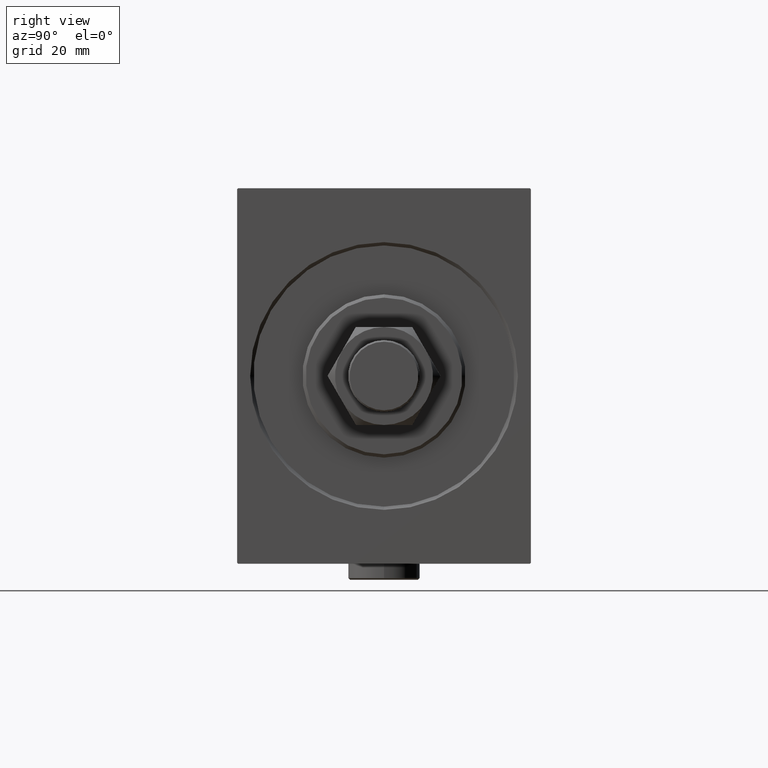
[diagram: clean part render]
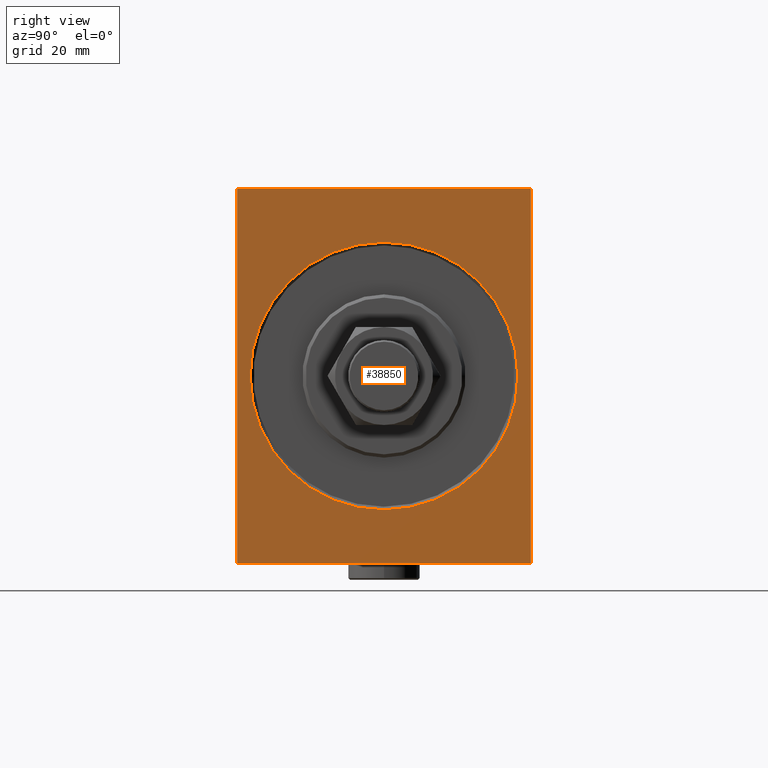
[diagram: same view with one face highlighted and labeled with its STEP entity id]
A machine part, right view. The second image highlights one B-rep face of the part: STEP entity #38850.
In plain terms, the highlighted planar face has unit normal (-1, 0, 0).
Its self-contained STEP definition (entity closure, byte-faithful):
#371 = FACE_OUTER_BOUND ( 'NONE', #19134, .T. ) ;
#1644 = ORIENTED_EDGE ( 'NONE', *, *, #27723, .T. ) ;
#2292 = DIRECTION ( 'NONE',  ( 0.000000000000000000, 0.000000000000000000, -1.000000000000000000 ) ) ;
#3249 = CARTESIAN_POINT ( 'NONE',  ( 0.000000000000000000, -44.70000000000003126, -57.50000000000002132 ) ) ;
#3302 = LINE ( 'NONE', #35689, #34653 ) ;
#3335 = VERTEX_POINT ( 'NONE', #37139 ) ;
#4716 = CARTESIAN_POINT ( 'NONE',  ( 0.000000000000000000, -44.70000000000003126, -57.50000000000002132 ) ) ;
#5890 = CARTESIAN_POINT ( 'NONE',  ( 0.000000000000000000, 0.000000000000000000, 0.000000000000000000 ) ) ;
#5993 = CARTESIAN_POINT ( 'NONE',  ( 0.000000000000000000, -45.00000000000000000, 57.49999999999999289 ) ) ;
#6158 = DIRECTION ( 'NONE',  ( 0.000000000000000000, 0.000000000000000000, 1.000000000000000000 ) ) ;
#7309 = VECTOR ( 'NONE', #35218, 1000.000000000000000 ) ;
#7318 = DIRECTION ( 'NONE',  ( 1.000000000000000000, 0.000000000000000000, -0.000000000000000000 ) ) ;
#9017 = LINE ( 'NONE', #5993, #10327 ) ;
#9737 = ORIENTED_EDGE ( 'NONE', *, *, #17533, .T. ) ;
#10072 = CARTESIAN_POINT ( 'NONE',  ( 0.000000000000000000, 45.00000000000001421, 57.19999999999998863 ) ) ;
#10327 = VECTOR ( 'NONE', #2292, 1000.000000000000000 ) ;
#10328 = CARTESIAN_POINT ( 'NONE',  ( 0.000000000000000000, 0.000000000000000000, 41.00000000000000711 ) ) ;
#10792 = DIRECTION ( 'NONE',  ( -0.000000000000000000, 0.000000000000000000, -1.000000000000000000 ) ) ;
#10930 = VERTEX_POINT ( 'NONE', #38148 ) ;
#13958 = AXIS2_PLACEMENT_3D ( 'NONE', #5890, #20020, #23275 ) ;
#14091 = CARTESIAN_POINT ( 'NONE',  ( 0.000000000000000000, -44.69999999999997442, 57.49999999999999289 ) ) ;
#14775 = VECTOR ( 'NONE', #41019, 1000.000000000000114 ) ;
#14947 = FACE_BOUND ( 'NONE', #21237, .T. ) ;
#15210 = DIRECTION ( 'NONE',  ( 0.000000000000000000, 0.000000000000000000, -1.000000000000000000 ) ) ;
#15519 = CARTESIAN_POINT ( 'NONE',  ( 0.000000000000000000, -45.00000000000000000, -57.50000000000002132 ) ) ;
#15663 = CARTESIAN_POINT ( 'NONE',  ( 0.000000000000000000, 0.000000000000000000, 0.000000000000000000 ) ) ;
#15680 = AXIS2_PLACEMENT_3D ( 'NONE', #32071, #7318, #10792 ) ;
#15841 = VERTEX_POINT ( 'NONE', #14091 ) ;
#16888 = VECTOR ( 'NONE', #33455, 1000.000000000000114 ) ;
#17078 = VERTEX_POINT ( 'NONE', #20097 ) ;
#17214 = DIRECTION ( 'NONE',  ( -0.000000000000000000, -0.7071067811865474617, -0.7071067811865474617 ) ) ;
#17533 = EDGE_CURVE ( 'NONE', #3335, #15841, #20896, .T. ) ;
#17975 = PLANE ( 'NONE',  #15680 ) ;
#18411 = EDGE_CURVE ( 'NONE', #10930, #19760, #37572, .T. ) ;
#18469 = DIRECTION ( 'NONE',  ( 1.000000000000000000, 0.000000000000000000, -0.000000000000000000 ) ) ;
#18678 = VECTOR ( 'NONE', #6158, 1000.000000000000000 ) ;
#18788 = EDGE_CURVE ( 'NONE', #24774, #15841, #21378, .T. ) ;
#19134 = EDGE_LOOP ( 'NONE', ( #40635, #30844, #36387, #1644, #43183, #42289, #40289, #9737 ) ) ;
#19760 = VERTEX_POINT ( 'NONE', #10328 ) ;
#20020 = DIRECTION ( 'NONE',  ( 1.000000000000000000, 0.000000000000000000, -0.000000000000000000 ) ) ;
#20097 = CARTESIAN_POINT ( 'NONE',  ( 0.000000000000000000, 45.00000000000001421, -57.20000000000004547 ) ) ;
#20432 = VERTEX_POINT ( 'NONE', #29409 ) ;
#20457 = CARTESIAN_POINT ( 'NONE',  ( 0.000000000000000000, 45.00000000000001421, 57.50000000000001421 ) ) ;
#20558 = EDGE_CURVE ( 'NONE', #24774, #42917, #40500, .T. ) ;
#20896 = LINE ( 'NONE', #29987, #16888 ) ;
#21197 = EDGE_CURVE ( 'NONE', #35437, #20432, #36394, .T. ) ;
#21237 = EDGE_LOOP ( 'NONE', ( #36245, #34904 ) ) ;
#21378 = LINE ( 'NONE', #20457, #7309 ) ;
#22476 = LINE ( 'NONE', #15519, #45093 ) ;
#23275 = DIRECTION ( 'NONE',  ( 0.000000000000000000, 0.000000000000000000, -1.000000000000000000 ) ) ;
#23769 = CARTESIAN_POINT ( 'NONE',  ( 0.000000000000000000, 45.00000000000001421, -57.50000000000000711 ) ) ;
#24774 = VERTEX_POINT ( 'NONE', #25323 ) ;
#25323 = CARTESIAN_POINT ( 'NONE',  ( 0.000000000000000000, 44.70000000000001705, 57.50000000000001421 ) ) ;
#26400 = CARTESIAN_POINT ( 'NONE',  ( 0.000000000000000000, 44.70000000000001705, 57.50000000000001421 ) ) ;
#26701 = EDGE_CURVE ( 'NONE', #19760, #10930, #32446, .T. ) ;
#27723 = EDGE_CURVE ( 'NONE', #17078, #28928, #3302, .T. ) ;
#28928 = VERTEX_POINT ( 'NONE', #30748 ) ;
#28934 = EDGE_CURVE ( 'NONE', #3335, #20432, #9017, .T. ) ;
#29409 = CARTESIAN_POINT ( 'NONE',  ( 0.000000000000000000, -45.00000000000000000, -57.20000000000003126 ) ) ;
#29847 = DIRECTION ( 'NONE',  ( 0.000000000000000000, 1.000000000000000000, 1.541976423090495140E-16 ) ) ;
#29987 = CARTESIAN_POINT ( 'NONE',  ( 0.000000000000000000, -45.00000000000000000, 57.20000000000000284 ) ) ;
#30087 = DIRECTION ( 'NONE',  ( -0.000000000000000000, 0.7071067811865393571, -0.7071067811865556774 ) ) ;
#30748 = CARTESIAN_POINT ( 'NONE',  ( 0.000000000000000000, 44.70000000000001705, -57.50000000000000711 ) ) ;
#30844 = ORIENTED_EDGE ( 'NONE', *, *, #20558, .T. ) ;
#30905 = EDGE_CURVE ( 'NONE', #35437, #28928, #22476, .T. ) ;
#32071 = CARTESIAN_POINT ( 'NONE',  ( 0.000000000000000000, 0.000000000000000000, 0.000000000000000000 ) ) ;
#32446 = CIRCLE ( 'NONE', #13958, 41.00000000000000711 ) ;
#33455 = DIRECTION ( 'NONE',  ( -0.000000000000000000, 0.7071067811865474617, 0.7071067811865474617 ) ) ;
#34653 = VECTOR ( 'NONE', #17214, 1000.000000000000114 ) ;
#34904 = ORIENTED_EDGE ( 'NONE', *, *, #18411, .T. ) ;
#35218 = DIRECTION ( 'NONE',  ( 0.000000000000000000, -1.000000000000000000, -2.312964634635742957E-16 ) ) ;
#35437 = VERTEX_POINT ( 'NONE', #3249 ) ;
#35689 = CARTESIAN_POINT ( 'NONE',  ( 0.000000000000000000, 45.00000000000001421, -57.20000000000004547 ) ) ;
#36208 = EDGE_CURVE ( 'NONE', #17078, #42917, #37841, .T. ) ;
#36245 = ORIENTED_EDGE ( 'NONE', *, *, #26701, .T. ) ;
#36387 = ORIENTED_EDGE ( 'NONE', *, *, #36208, .F. ) ;
#36394 = LINE ( 'NONE', #4716, #14775 ) ;
#37139 = CARTESIAN_POINT ( 'NONE',  ( 0.000000000000000000, -45.00000000000000000, 57.20000000000000284 ) ) ;
#37572 = CIRCLE ( 'NONE', #38294, 41.00000000000000711 ) ;
#37841 = LINE ( 'NONE', #23769, #18678 ) ;
#38148 = CARTESIAN_POINT ( 'NONE',  ( 0.000000000000000000, 5.021051876504148963E-15, -41.00000000000000711 ) ) ;
#38294 = AXIS2_PLACEMENT_3D ( 'NONE', #15663, #18469, #15210 ) ;
#38850 = ADVANCED_FACE ( 'NONE', ( #14947, #371 ), #17975, .F. ) ;
#40289 = ORIENTED_EDGE ( 'NONE', *, *, #28934, .F. ) ;
#40500 = LINE ( 'NONE', #26400, #42854 ) ;
#40635 = ORIENTED_EDGE ( 'NONE', *, *, #18788, .F. ) ;
#41019 = DIRECTION ( 'NONE',  ( 0.000000000000000000, -0.7071067811865474617, 0.7071067811865474617 ) ) ;
#42289 = ORIENTED_EDGE ( 'NONE', *, *, #21197, .T. ) ;
#42854 = VECTOR ( 'NONE', #30087, 1000.000000000000000 ) ;
#42917 = VERTEX_POINT ( 'NONE', #10072 ) ;
#43183 = ORIENTED_EDGE ( 'NONE', *, *, #30905, .F. ) ;
#45093 = VECTOR ( 'NONE', #29847, 1000.000000000000000 ) ;